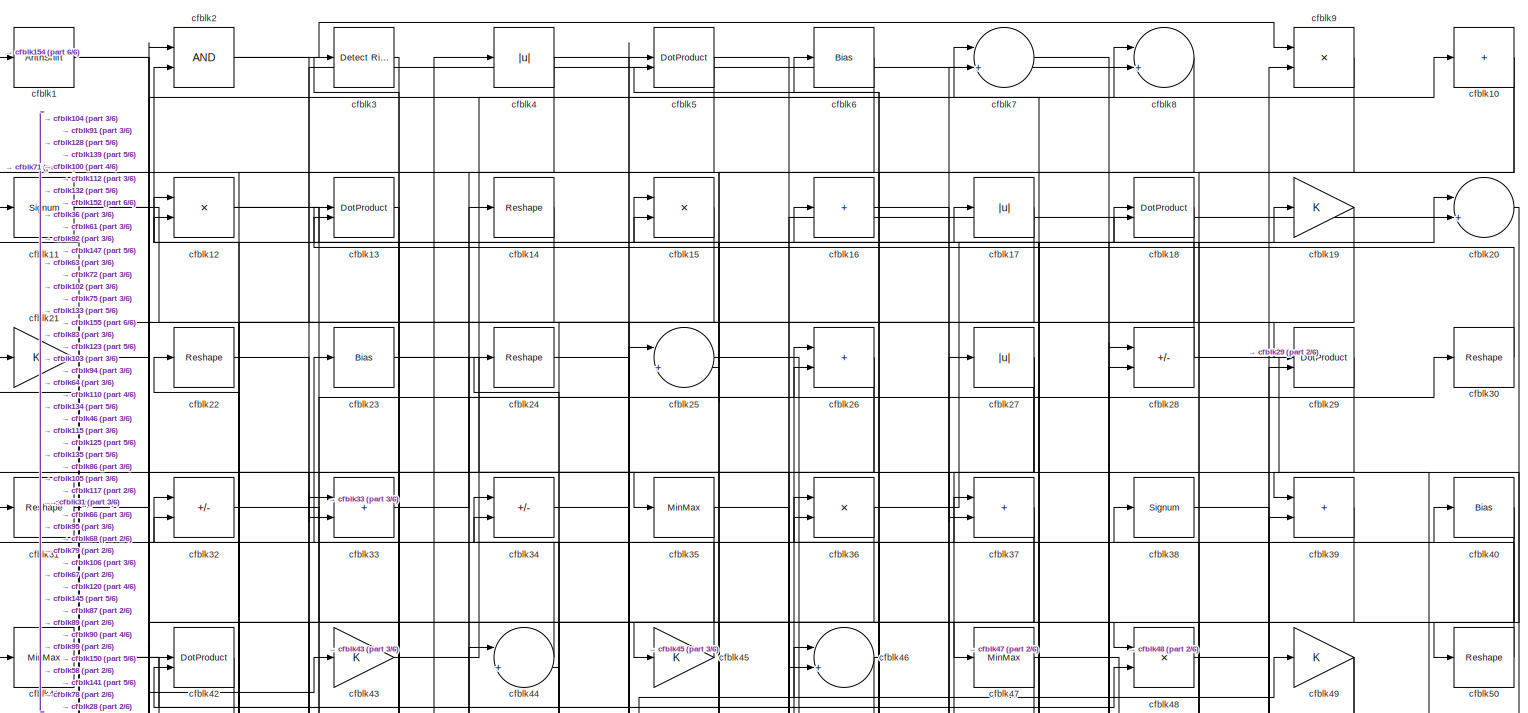
[diagram: root canvas - part 1/6, full width, top band]
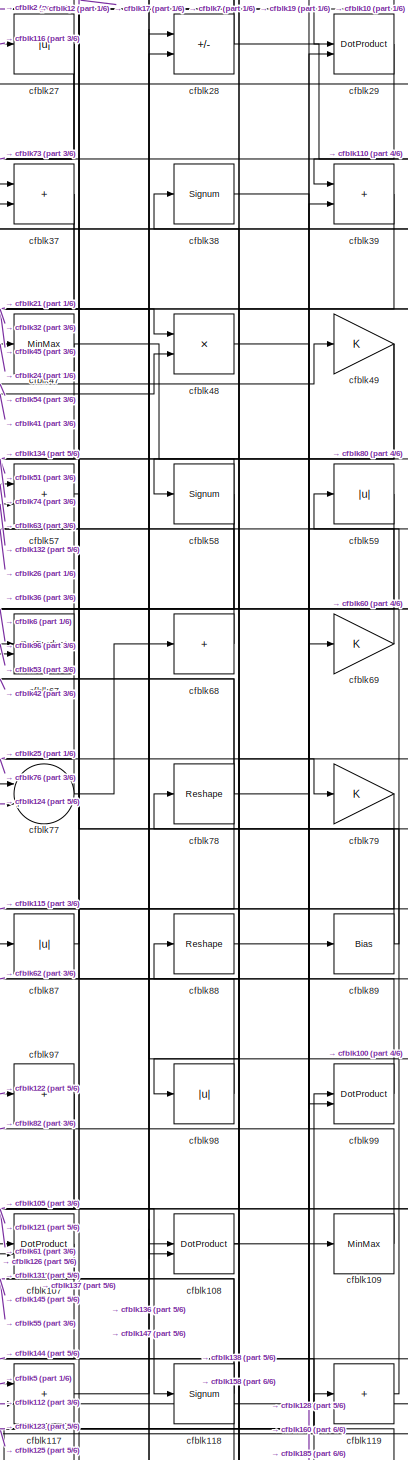
[diagram: root canvas - part 2/6, middle right region]
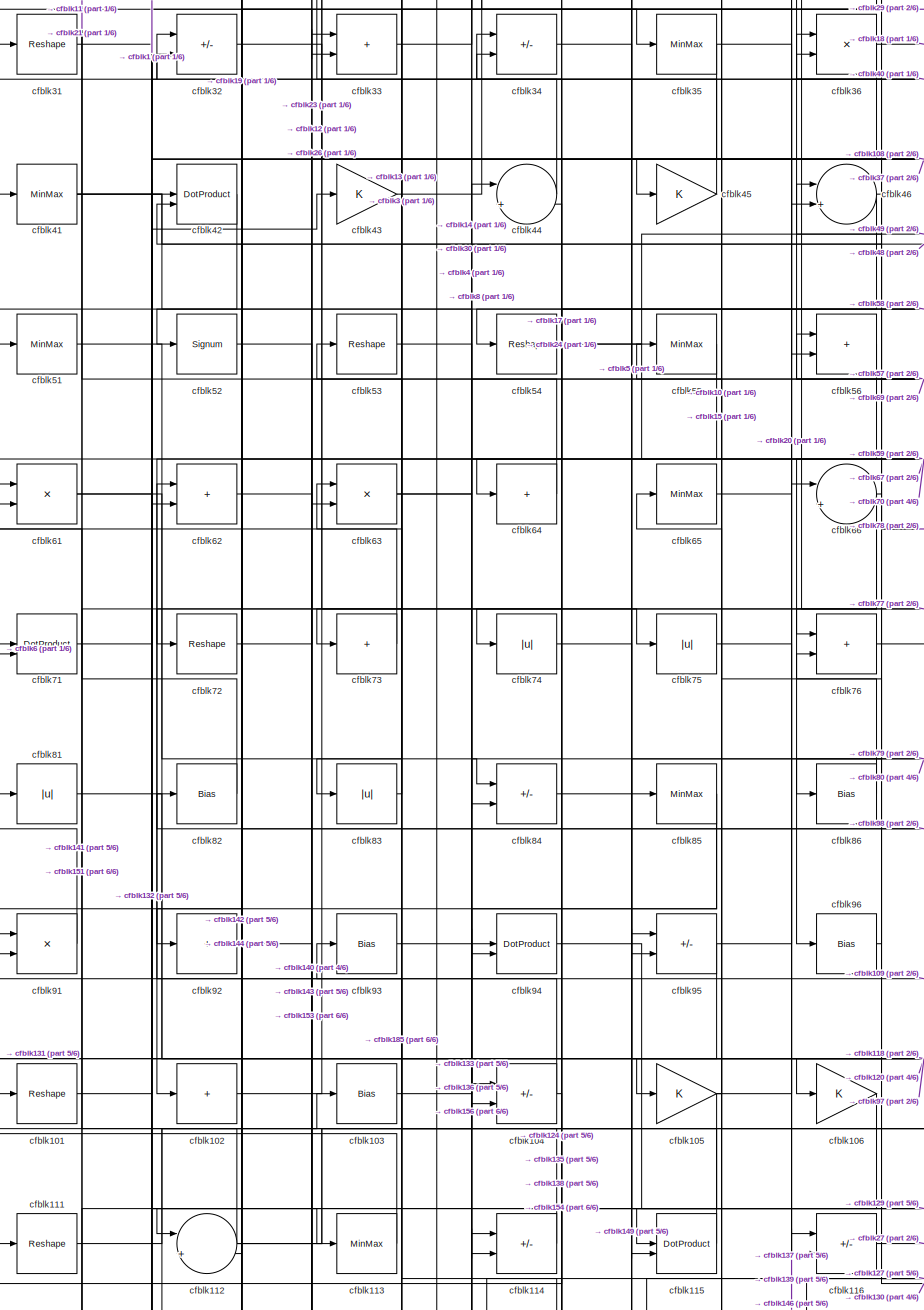
[diagram: root canvas - part 3/6, middle left region]
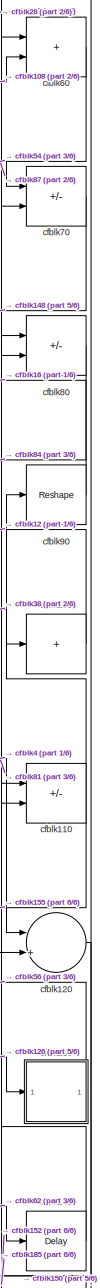
[diagram: root canvas - part 4/6, middle right region]
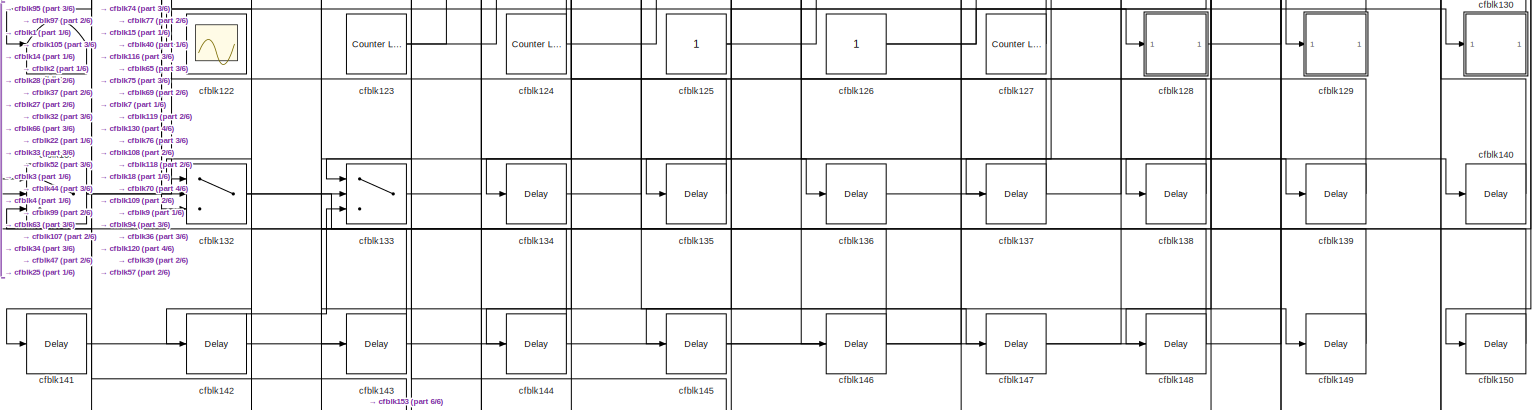
[diagram: root canvas - part 5/6, full width, bottom band]
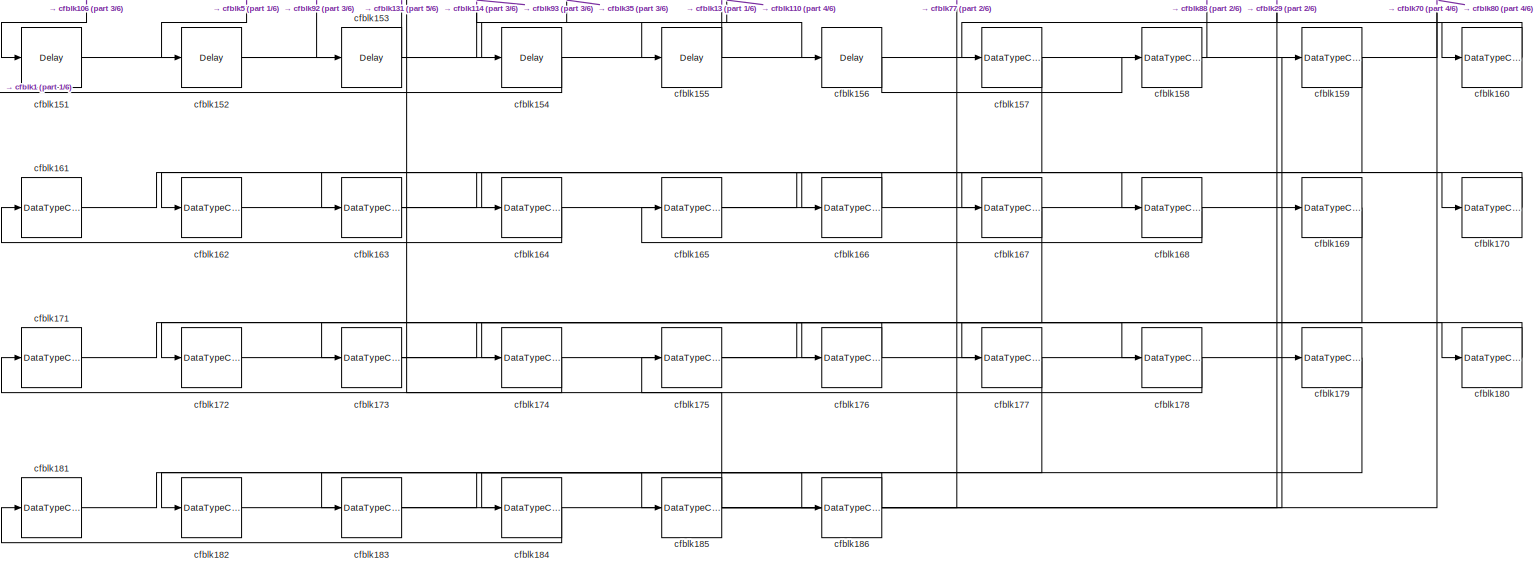
[diagram: root canvas - part 6/6, full width, bottom band]
MODEL slx_ebf06ebb24d3
KIND model
CONFIG AbsTol = auto
CONFIG EnableMultiTasking = off
CONFIG FixedStep = auto
CONFIG MaxStep = auto
CONFIG MinStep = auto
CONFIG RelTol = 1e-3
CONFIG SampleTimeConstraint = Unconstrained
CONFIG SolverName = VariableStepAuto
CONFIG StartTime = 0.0
CONFIG StopTime = 10.0
BLOCK [ArithShift] cfblk1
  BitShiftNumber = 8
  InputPortMap = u0
BLOCK [Sum] cfblk10
  IconShape = rectangular
  Inputs = +
BLOCK [Sum] cfblk100
  IconShape = rectangular
  Inputs = +
BLOCK [Reshape] cfblk101
BLOCK [Sum] cfblk102
  IconShape = rectangular
  Inputs = +
BLOCK [Bias] cfblk103
  Bias = 0.0
  SaturateOnIntegerOverflow = off
BLOCK [Sum] cfblk104
  IconShape = rectangular
  Inputs = +-
BLOCK [Gain] cfblk105
BLOCK [Gain] cfblk106
BLOCK [DotProduct] cfblk107
  OutDataTypeStr = Inherit: Inherit via internal rule
BLOCK [DotProduct] cfblk108
  OutDataTypeStr = Inherit: Inherit via internal rule
BLOCK [MinMax] cfblk109
BLOCK [Signum] cfblk11
BLOCK [Sum] cfblk110
  IconShape = rectangular
  Inputs = +-
BLOCK [Reshape] cfblk111
BLOCK [Sum] cfblk112
  Inputs = |++
BLOCK [MinMax] cfblk113
BLOCK [Sum] cfblk114
  IconShape = rectangular
  Inputs = +-
BLOCK [DotProduct] cfblk115
  OutDataTypeStr = Inherit: Inherit via internal rule
BLOCK [Sum] cfblk116
  IconShape = rectangular
  Inputs = +-
BLOCK [Sum] cfblk117
  IconShape = rectangular
BLOCK [Signum] cfblk118
BLOCK [Sum] cfblk119
  IconShape = rectangular
  Inputs = +
BLOCK [Product] cfblk12
  Inputs = */
  RndMeth = Zero
  SaturateOnIntegerOverflow = on
BLOCK [Sum] cfblk120
  Inputs = |++
BLOCK [Terminator] cfblk121
BLOCK [Scope] cfblk122
  Floating = off
  NumInputPorts = 1
  ScopeSpecificationString = Simulink.scopes.TimeScopeBlockCfg('CurrentConfiguration', extmgr.ConfigurationSet(extmgr.Configuration('Core','General UI',true),extmgr.Configuration('Core','Source UI',true),extmgr.Configuration('Sources','WiredSimulink',true,'DataLoggingVariableName','ScopeData2','DataLoggingSaveFormat','Array','DataLoggingLimitDataPoints',true,'DataLoggingDecimation','1'),extmgr.Configuration('Visuals','Time Do...<+868ch>
BLOCK [Reference] cfblk123  REF=hdlsllib/Sources/Counter
Limited
  SourceBlock = hdlsllib/Sources/Counter\nLimited
  SourceType = Counter Limited
BLOCK [Reference] cfblk124  REF=hdlsllib/Sources/Counter
Limited
  SourceBlock = hdlsllib/Sources/Counter\nLimited
  SourceType = Counter Limited
BLOCK [Constant] cfblk125
  SampleTime = -1
BLOCK [Constant] cfblk126
  SampleTime = -1
BLOCK [Reference] cfblk127  REF=hdlsllib/Sources/Counter
Limited
  SourceBlock = hdlsllib/Sources/Counter\nLimited
  SourceType = Counter Limited
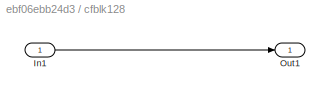
BLOCK [SubSystem] cfblk128
  LibrarySourceBlock = hdlsllib/Ports &\nSubsystems/Subsystem
BLOCK [Inport] cfblk128/In1
BLOCK [Outport] cfblk128/Out1
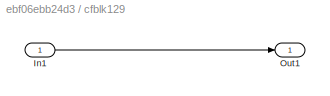
BLOCK [SubSystem] cfblk129
  LibrarySourceBlock = hdlsllib/Ports &\nSubsystems/Subsystem
BLOCK [Inport] cfblk129/In1
BLOCK [Outport] cfblk129/Out1
BLOCK [DotProduct] cfblk13
  OutDataTypeStr = Inherit: Inherit via internal rule
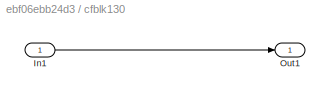
BLOCK [SubSystem] cfblk130
  LibrarySourceBlock = hdlsllib/Ports &\nSubsystems/Subsystem
BLOCK [Inport] cfblk130/In1
BLOCK [Outport] cfblk130/Out1
BLOCK [Switch] cfblk131
  InputSameDT = off
  SaturateOnIntegerOverflow = off
BLOCK [Switch] cfblk132
  InputSameDT = off
  SaturateOnIntegerOverflow = off
BLOCK [Switch] cfblk133
  InputSameDT = off
  SaturateOnIntegerOverflow = off
BLOCK [Delay] cfblk134
  InputPortMap = u0
  SampleTime = 1
BLOCK [Delay] cfblk135
  InputPortMap = u0
  SampleTime = 1
BLOCK [Delay] cfblk136
  InputPortMap = u0
  SampleTime = 1
BLOCK [Delay] cfblk137
  InputPortMap = u0
  SampleTime = 1
BLOCK [Delay] cfblk138
  InputPortMap = u0
  SampleTime = 1
BLOCK [Delay] cfblk139
  InputPortMap = u0
  SampleTime = 1
BLOCK [Reshape] cfblk14
BLOCK [Delay] cfblk140
  InputPortMap = u0
  SampleTime = 1
BLOCK [Delay] cfblk141
  InputPortMap = u0
  SampleTime = 1
BLOCK [Delay] cfblk142
  InputPortMap = u0
  SampleTime = 1
BLOCK [Delay] cfblk143
  InputPortMap = u0
  SampleTime = 1
BLOCK [Delay] cfblk144
  InputPortMap = u0
  SampleTime = 1
BLOCK [Delay] cfblk145
  InputPortMap = u0
  SampleTime = 1
BLOCK [Delay] cfblk146
  InputPortMap = u0
  SampleTime = 1
BLOCK [Delay] cfblk147
  InputPortMap = u0
  SampleTime = 1
BLOCK [Delay] cfblk148
  InputPortMap = u0
  SampleTime = 1
BLOCK [Delay] cfblk149
  InputPortMap = u0
  SampleTime = 1
BLOCK [Product] cfblk15
  Inputs = */
  RndMeth = Zero
  SaturateOnIntegerOverflow = on
BLOCK [Delay] cfblk150
  InputPortMap = u0
  SampleTime = 1
BLOCK [Delay] cfblk151
  InputPortMap = u0
  SampleTime = 1
BLOCK [Delay] cfblk152
  InputPortMap = u0
  SampleTime = 1
BLOCK [Delay] cfblk153
  InputPortMap = u0
  SampleTime = 1
BLOCK [Delay] cfblk154
  InputPortMap = u0
  SampleTime = 1
BLOCK [Delay] cfblk155
  InputPortMap = u0
  SampleTime = 1
BLOCK [Delay] cfblk156
  InputPortMap = u0
  SampleTime = 1
BLOCK [DataTypeConversion] cfblk157
  RndMeth = Floor
  SaturateOnIntegerOverflow = off
BLOCK [DataTypeConversion] cfblk158
  OutDataTypeStr = uint8
  RndMeth = Floor
  SaturateOnIntegerOverflow = off
BLOCK [DataTypeConversion] cfblk159
  RndMeth = Floor
  SaturateOnIntegerOverflow = off
BLOCK [Sum] cfblk16
  IconShape = rectangular
  Inputs = +
BLOCK [DataTypeConversion] cfblk160
  OutDataTypeStr = uint8
  RndMeth = Floor
  SaturateOnIntegerOverflow = off
BLOCK [DataTypeConversion] cfblk161
  RndMeth = Floor
  SaturateOnIntegerOverflow = off
BLOCK [DataTypeConversion] cfblk162
  OutDataTypeStr = uint8
  RndMeth = Floor
  SaturateOnIntegerOverflow = off
BLOCK [DataTypeConversion] cfblk163
  RndMeth = Floor
  SaturateOnIntegerOverflow = off
BLOCK [DataTypeConversion] cfblk164
  OutDataTypeStr = uint8
  RndMeth = Floor
  SaturateOnIntegerOverflow = off
BLOCK [DataTypeConversion] cfblk165
  RndMeth = Floor
  SaturateOnIntegerOverflow = off
BLOCK [DataTypeConversion] cfblk166
  OutDataTypeStr = uint8
  RndMeth = Floor
  SaturateOnIntegerOverflow = off
BLOCK [DataTypeConversion] cfblk167
  RndMeth = Floor
  SaturateOnIntegerOverflow = off
BLOCK [DataTypeConversion] cfblk168
  OutDataTypeStr = uint8
  RndMeth = Floor
  SaturateOnIntegerOverflow = off
BLOCK [DataTypeConversion] cfblk169
  RndMeth = Floor
  SaturateOnIntegerOverflow = off
BLOCK [Abs] cfblk17
  SaturateOnIntegerOverflow = off
BLOCK [DataTypeConversion] cfblk170
  OutDataTypeStr = uint8
  RndMeth = Floor
  SaturateOnIntegerOverflow = off
BLOCK [DataTypeConversion] cfblk171
  RndMeth = Floor
  SaturateOnIntegerOverflow = off
BLOCK [DataTypeConversion] cfblk172
  OutDataTypeStr = uint8
  RndMeth = Floor
  SaturateOnIntegerOverflow = off
BLOCK [DataTypeConversion] cfblk173
  RndMeth = Floor
  SaturateOnIntegerOverflow = off
BLOCK [DataTypeConversion] cfblk174
  OutDataTypeStr = uint8
  RndMeth = Floor
  SaturateOnIntegerOverflow = off
BLOCK [DataTypeConversion] cfblk175
  RndMeth = Floor
  SaturateOnIntegerOverflow = off
BLOCK [DataTypeConversion] cfblk176
  OutDataTypeStr = uint8
  RndMeth = Floor
  SaturateOnIntegerOverflow = off
BLOCK [DataTypeConversion] cfblk177
  RndMeth = Floor
  SaturateOnIntegerOverflow = off
BLOCK [DataTypeConversion] cfblk178
  OutDataTypeStr = uint8
  RndMeth = Floor
  SaturateOnIntegerOverflow = off
BLOCK [DataTypeConversion] cfblk179
  RndMeth = Floor
  SaturateOnIntegerOverflow = off
BLOCK [DotProduct] cfblk18
  OutDataTypeStr = Inherit: Inherit via internal rule
BLOCK [DataTypeConversion] cfblk180
  OutDataTypeStr = uint8
  RndMeth = Floor
  SaturateOnIntegerOverflow = off
BLOCK [DataTypeConversion] cfblk181
  RndMeth = Floor
  SaturateOnIntegerOverflow = off
BLOCK [DataTypeConversion] cfblk182
  OutDataTypeStr = uint8
  RndMeth = Floor
  SaturateOnIntegerOverflow = off
BLOCK [DataTypeConversion] cfblk183
  RndMeth = Floor
  SaturateOnIntegerOverflow = off
BLOCK [DataTypeConversion] cfblk184
  OutDataTypeStr = uint8
  RndMeth = Floor
  SaturateOnIntegerOverflow = off
BLOCK [DataTypeConversion] cfblk185
  RndMeth = Floor
  SaturateOnIntegerOverflow = off
BLOCK [DataTypeConversion] cfblk186
  OutDataTypeStr = uint8
  RndMeth = Floor
  SaturateOnIntegerOverflow = off
BLOCK [Gain] cfblk19
BLOCK [Logic] cfblk2
  AllPortsSameDT = off
  OutDataTypeStr = boolean
BLOCK [Sum] cfblk20
  Inputs = |++
BLOCK [Gain] cfblk21
BLOCK [Reshape] cfblk22
BLOCK [Bias] cfblk23
  Bias = 0.0
  SaturateOnIntegerOverflow = off
BLOCK [Reshape] cfblk24
BLOCK [Sum] cfblk25
  Inputs = |++
BLOCK [Sum] cfblk26
  IconShape = rectangular
BLOCK [Abs] cfblk27
  SaturateOnIntegerOverflow = off
BLOCK [Sum] cfblk28
  IconShape = rectangular
  Inputs = +-
BLOCK [DotProduct] cfblk29
  OutDataTypeStr = Inherit: Inherit via internal rule
BLOCK [Reference] cfblk3  REF=hdlsllib/Logic and Bit
Operations/Detect Rise
Nonnegative
  SourceBlock = hdlsllib/Logic and Bit\nOperations/Detect Rise\nNonnegative
  SourceType = Detect Rise Nonnegative
BLOCK [Reshape] cfblk30
BLOCK [Reshape] cfblk31
BLOCK [Sum] cfblk32
  IconShape = rectangular
  Inputs = +-
BLOCK [Sum] cfblk33
  IconShape = rectangular
BLOCK [Sum] cfblk34
  IconShape = rectangular
  Inputs = +-
BLOCK [MinMax] cfblk35
BLOCK [Product] cfblk36
  Inputs = */
  RndMeth = Zero
  SaturateOnIntegerOverflow = on
BLOCK [Sum] cfblk37
  IconShape = rectangular
BLOCK [Signum] cfblk38
BLOCK [Sum] cfblk39
  IconShape = rectangular
BLOCK [Abs] cfblk4
  SaturateOnIntegerOverflow = off
BLOCK [Bias] cfblk40
  Bias = 0.0
  SaturateOnIntegerOverflow = off
BLOCK [MinMax] cfblk41
BLOCK [DotProduct] cfblk42
  OutDataTypeStr = Inherit: Inherit via internal rule
BLOCK [Gain] cfblk43
BLOCK [Sum] cfblk44
  Inputs = |++
BLOCK [Gain] cfblk45
BLOCK [Sum] cfblk46
  Inputs = |++
BLOCK [MinMax] cfblk47
BLOCK [Product] cfblk48
  Inputs = */
  RndMeth = Zero
  SaturateOnIntegerOverflow = on
BLOCK [Gain] cfblk49
BLOCK [DotProduct] cfblk5
  OutDataTypeStr = Inherit: Inherit via internal rule
BLOCK [Reshape] cfblk50
BLOCK [MinMax] cfblk51
BLOCK [Signum] cfblk52
BLOCK [Reshape] cfblk53
BLOCK [Reshape] cfblk54
BLOCK [MinMax] cfblk55
BLOCK [Sum] cfblk56
  IconShape = rectangular
BLOCK [Sum] cfblk57
  IconShape = rectangular
BLOCK [Signum] cfblk58
BLOCK [Abs] cfblk59
  SaturateOnIntegerOverflow = off
BLOCK [Bias] cfblk6
  Bias = 0.0
  SaturateOnIntegerOverflow = off
BLOCK [Sum] cfblk60
  IconShape = rectangular
BLOCK [Product] cfblk61
  Inputs = */
  RndMeth = Zero
  SaturateOnIntegerOverflow = on
BLOCK [Sum] cfblk62
  IconShape = rectangular
BLOCK [Product] cfblk63
  Inputs = */
  RndMeth = Zero
  SaturateOnIntegerOverflow = on
BLOCK [Sum] cfblk64
  IconShape = rectangular
  Inputs = +
BLOCK [MinMax] cfblk65
BLOCK [Sum] cfblk66
  Inputs = |++
BLOCK [DotProduct] cfblk67
  OutDataTypeStr = Inherit: Inherit via internal rule
BLOCK [Sum] cfblk68
  IconShape = rectangular
  Inputs = +
BLOCK [Gain] cfblk69
BLOCK [Sum] cfblk7
  Inputs = |++
BLOCK [Sum] cfblk70
  IconShape = rectangular
  Inputs = +-
BLOCK [DotProduct] cfblk71
  OutDataTypeStr = Inherit: Inherit via internal rule
BLOCK [Reshape] cfblk72
BLOCK [Sum] cfblk73
  IconShape = rectangular
  Inputs = +
BLOCK [Abs] cfblk74
  SaturateOnIntegerOverflow = off
BLOCK [Abs] cfblk75
  SaturateOnIntegerOverflow = off
BLOCK [Sum] cfblk76
  IconShape = rectangular
BLOCK [Sum] cfblk77
  Inputs = |++
BLOCK [Reshape] cfblk78
BLOCK [Gain] cfblk79
BLOCK [Sum] cfblk8
  Inputs = |++
BLOCK [Sum] cfblk80
  IconShape = rectangular
  Inputs = +-
BLOCK [Abs] cfblk81
  SaturateOnIntegerOverflow = off
BLOCK [Bias] cfblk82
  Bias = 0.0
  SaturateOnIntegerOverflow = off
BLOCK [Abs] cfblk83
  SaturateOnIntegerOverflow = off
BLOCK [Sum] cfblk84
  IconShape = rectangular
  Inputs = +-
BLOCK [MinMax] cfblk85
BLOCK [Bias] cfblk86
  Bias = 0.0
  SaturateOnIntegerOverflow = off
BLOCK [Abs] cfblk87
  SaturateOnIntegerOverflow = off
BLOCK [Reshape] cfblk88
BLOCK [Bias] cfblk89
  Bias = 0.0
  SaturateOnIntegerOverflow = off
BLOCK [Product] cfblk9
  Inputs = */
  RndMeth = Zero
  SaturateOnIntegerOverflow = on
BLOCK [Reshape] cfblk90
BLOCK [Product] cfblk91
  Inputs = */
  RndMeth = Zero
  SaturateOnIntegerOverflow = on
BLOCK [Sum] cfblk92
  IconShape = rectangular
  Inputs = +
BLOCK [Bias] cfblk93
  Bias = 0.0
  SaturateOnIntegerOverflow = off
BLOCK [DotProduct] cfblk94
  OutDataTypeStr = Inherit: Inherit via internal rule
BLOCK [Sum] cfblk95
  IconShape = rectangular
  Inputs = +-
BLOCK [Bias] cfblk96
  Bias = 0.0
  SaturateOnIntegerOverflow = off
BLOCK [Sum] cfblk97
  IconShape = rectangular
  Inputs = +
BLOCK [Abs] cfblk98
  SaturateOnIntegerOverflow = off
BLOCK [DotProduct] cfblk99
  OutDataTypeStr = Inherit: Inherit via internal rule
LINE cfblk100:1 -> cfblk12:1
LINE cfblk101:1 -> cfblk43:1
LINE cfblk102:1 -> cfblk26:1
LINE cfblk103:1 -> cfblk14:1
NET cfblk104:1 -> cfblk111:1, cfblk21:1
NET cfblk105:1 -> cfblk132:3, cfblk40:1, cfblk65:1
LINE cfblk106:1 -> cfblk151:1
LINE cfblk107:1 -> cfblk144:1
NET cfblk108:1 -> cfblk38:1, cfblk60:2
LINE cfblk109:1 -> cfblk82:1
NET cfblk10:1 -> cfblk115:1, cfblk58:1
NET cfblk110:1 -> cfblk155:1, cfblk90:1
LINE cfblk111:1 -> cfblk103:1
NET cfblk112:1 -> cfblk5:1, cfblk91:2, cfblk94:1
LINE cfblk113:1 -> cfblk31:1
LINE cfblk114:1 -> cfblk32:1
LINE cfblk115:1 -> cfblk24:1
LINE cfblk116:1 -> cfblk27:1
LINE cfblk117:1 -> cfblk19:1
NET cfblk118:1 -> cfblk145:1, cfblk53:1, cfblk55:1
LINE cfblk119:1 -> cfblk78:1
NET cfblk11:1 -> cfblk46:2, cfblk95:2
LINE cfblk120:1 -> cfblk150:1
NET cfblk123:1 -> cfblk4:1, cfblk99:1
NET cfblk124:1 -> cfblk63:1, cfblk77:2
NET cfblk125:1 -> cfblk15:1, cfblk69:1
NET cfblk126:1 -> cfblk119:1, cfblk130:1
LINE cfblk127:1 -> cfblk76:2
LINE cfblk128/In1:1 -> cfblk128/Out1:1
LINE cfblk128:1 -> cfblk109:1
LINE cfblk129/In1:1 -> cfblk129/Out1:1
LINE cfblk129:1 -> cfblk36:1
NET cfblk12:1 -> cfblk20:1, cfblk75:1
LINE cfblk130/In1:1 -> cfblk130/Out1:1
LINE cfblk130:1 -> cfblk56:1
NET cfblk131:1 -> cfblk28:1, cfblk37:1
NET cfblk132:1 -> cfblk39:1, cfblk57:2
LINE cfblk133:1 -> cfblk44:1
LINE cfblk134:1 -> cfblk25:1
LINE cfblk135:1 -> cfblk34:2
LINE cfblk136:1 -> cfblk108:1
LINE cfblk137:1 -> cfblk116:1
LINE cfblk138:1 -> cfblk44:2
LINE cfblk139:1 -> cfblk2:1
LINE cfblk13:1 -> cfblk83:1
LINE cfblk140:1 -> cfblk60:1
LINE cfblk141:1 -> cfblk9:2
LINE cfblk142:1 -> cfblk133:3
LINE cfblk143:1 -> cfblk33:1
LINE cfblk144:1 -> cfblk32:2
LINE cfblk145:1 -> cfblk7:2
LINE cfblk146:1 -> cfblk133:2
LINE cfblk147:1 -> cfblk28:2
LINE cfblk148:1 -> cfblk131:1
LINE cfblk149:1 -> cfblk95:1
LINE cfblk14:1 -> cfblk132:2
LINE cfblk150:1 -> cfblk18:2
LINE cfblk151:1 -> cfblk114:1
LINE cfblk152:1 -> cfblk80:1
LINE cfblk153:1 -> cfblk131:3
LINE cfblk154:1 -> cfblk1:1
LINE cfblk155:1 -> cfblk13:2
LINE cfblk156:1 -> cfblk158:1
LINE cfblk157:1 -> cfblk162:1
LINE cfblk158:1 -> cfblk88:1
LINE cfblk159:1 -> cfblk164:1
LINE cfblk15:1 -> cfblk132:1
LINE cfblk160:1 -> cfblk157:1
LINE cfblk161:1 -> cfblk166:1
LINE cfblk162:1 -> cfblk159:1
LINE cfblk163:1 -> cfblk168:1
LINE cfblk164:1 -> cfblk161:1
LINE cfblk165:1 -> cfblk170:1
LINE cfblk166:1 -> cfblk163:1
LINE cfblk167:1 -> cfblk172:1
LINE cfblk168:1 -> cfblk165:1
LINE cfblk169:1 -> cfblk174:1
LINE cfblk16:1 -> cfblk120:2
LINE cfblk170:1 -> cfblk167:1
LINE cfblk171:1 -> cfblk176:1
LINE cfblk172:1 -> cfblk169:1
LINE cfblk173:1 -> cfblk178:1
LINE cfblk174:1 -> cfblk171:1
LINE cfblk175:1 -> cfblk180:1
LINE cfblk176:1 -> cfblk173:1
LINE cfblk177:1 -> cfblk182:1
LINE cfblk178:1 -> cfblk175:1
LINE cfblk179:1 -> cfblk184:1
LINE cfblk17:1 -> cfblk64:1
LINE cfblk180:1 -> cfblk177:1
LINE cfblk181:1 -> cfblk186:1
LINE cfblk182:1 -> cfblk179:1
LINE cfblk183:1 -> cfblk185:1
LINE cfblk184:1 -> cfblk181:1
NET cfblk185:1 -> cfblk29:2, cfblk70:2, cfblk77:1, cfblk93:1
LINE cfblk186:1 -> cfblk183:1
LINE cfblk18:1 -> cfblk91:1
LINE cfblk19:1 -> cfblk92:1
NET cfblk1:1 -> cfblk128:1, cfblk33:2
LINE cfblk20:1 -> cfblk50:1
LINE cfblk21:1 -> cfblk48:1
LINE cfblk22:1 -> cfblk147:1
NET cfblk23:1 -> cfblk35:1, cfblk66:1
LINE cfblk24:1 -> cfblk47:1
LINE cfblk25:1 -> cfblk79:1
NET cfblk26:1 -> cfblk112:1, cfblk61:2
NET cfblk27:1 -> cfblk122:1, cfblk37:2, cfblk97:1
NET cfblk28:1 -> cfblk110:1, cfblk2:2
LINE cfblk29:1 -> cfblk73:1
NET cfblk2:1 -> cfblk29:1, cfblk9:1
LINE cfblk30:1 -> cfblk13:1
LINE cfblk31:1 -> cfblk10:1
LINE cfblk32:1 -> cfblk108:2
LINE cfblk33:1 -> cfblk30:1
LINE cfblk34:1 -> cfblk85:1
NET cfblk35:1 -> cfblk154:1, cfblk56:2
NET cfblk36:1 -> cfblk18:1, cfblk72:1
NET cfblk37:1 -> cfblk45:1, cfblk62:2
LINE cfblk38:1 -> cfblk100:1
LINE cfblk39:1 -> cfblk138:1
LINE cfblk3:1 -> cfblk133:1
NET cfblk40:1 -> cfblk135:1, cfblk63:2
NET cfblk41:1 -> cfblk104:1, cfblk113:1, cfblk48:2
LINE cfblk42:1 -> cfblk52:1
LINE cfblk43:1 -> cfblk8:1
LINE cfblk44:1 -> cfblk34:1
LINE cfblk45:1 -> cfblk23:1
NET cfblk46:1 -> cfblk54:1, cfblk66:2
NET cfblk47:1 -> cfblk134:1, cfblk80:2
LINE cfblk48:1 -> cfblk89:1
NET cfblk49:1 -> cfblk74:1, cfblk98:1
NET cfblk4:1 -> cfblk110:2, cfblk94:2
LINE cfblk50:1 -> cfblk22:1
LINE cfblk51:1 -> cfblk84:1
LINE cfblk52:1 -> cfblk143:1
LINE cfblk53:1 -> cfblk67:1
NET cfblk54:1 -> cfblk49:1, cfblk70:1
LINE cfblk55:1 -> cfblk71:1
LINE cfblk56:1 -> cfblk102:1
LINE cfblk57:1 -> cfblk137:1
NET cfblk58:1 -> cfblk112:2, cfblk117:2, cfblk51:1
LINE cfblk59:1 -> cfblk96:1
NET cfblk5:1 -> cfblk117:1, cfblk152:1
LINE cfblk60:1 -> cfblk87:1
NET cfblk61:1 -> cfblk104:2, cfblk118:1
LINE cfblk62:1 -> cfblk140:1
NET cfblk63:1 -> cfblk136:1, cfblk57:1
LINE cfblk64:1 -> cfblk11:1
LINE cfblk65:1 -> cfblk139:1
NET cfblk66:1 -> cfblk141:1, cfblk142:1, cfblk86:1
NET cfblk67:1 -> cfblk107:2, cfblk6:1
LINE cfblk68:1 -> cfblk26:2
LINE cfblk69:1 -> cfblk36:2
LINE cfblk6:1 -> cfblk71:2
LINE cfblk70:1 -> cfblk148:1
LINE cfblk71:1 -> cfblk42:1
LINE cfblk72:1 -> cfblk8:2
LINE cfblk73:1 -> cfblk41:1
LINE cfblk74:1 -> cfblk149:1
LINE cfblk75:1 -> cfblk146:1
LINE cfblk76:1 -> cfblk67:2
NET cfblk77:1 -> cfblk68:1, cfblk76:1
NET cfblk78:1 -> cfblk107:1, cfblk39:2, cfblk42:2, cfblk5:2
LINE cfblk79:1 -> cfblk115:2
LINE cfblk7:1 -> cfblk99:2
LINE cfblk80:1 -> cfblk84:2
LINE cfblk81:1 -> cfblk120:1
LINE cfblk82:1 -> cfblk61:1
LINE cfblk83:1 -> cfblk3:1
LINE cfblk84:1 -> cfblk116:2
NET cfblk85:1 -> cfblk101:1, cfblk114:2
LINE cfblk86:1 -> cfblk15:2
LINE cfblk87:1 -> cfblk7:1
LINE cfblk88:1 -> cfblk160:1
NET cfblk89:1 -> cfblk12:2, cfblk59:1
LINE cfblk8:1 -> cfblk106:1
LINE cfblk90:1 -> cfblk16:1
LINE cfblk91:1 -> cfblk81:1
LINE cfblk92:1 -> cfblk153:1
LINE cfblk93:1 -> cfblk156:1
LINE cfblk94:1 -> cfblk129:1
NET cfblk95:1 -> cfblk131:2, cfblk20:2
LINE cfblk96:1 -> cfblk46:1
NET cfblk97:1 -> cfblk105:1, cfblk121:1
LINE cfblk98:1 -> cfblk62:1
LINE cfblk99:1 -> cfblk17:1
LINE cfblk9:1 -> cfblk25:2
note: NET lines group one-source signal fan-out (src -> all destinations, sorted); 1:1 wires keep LINE
